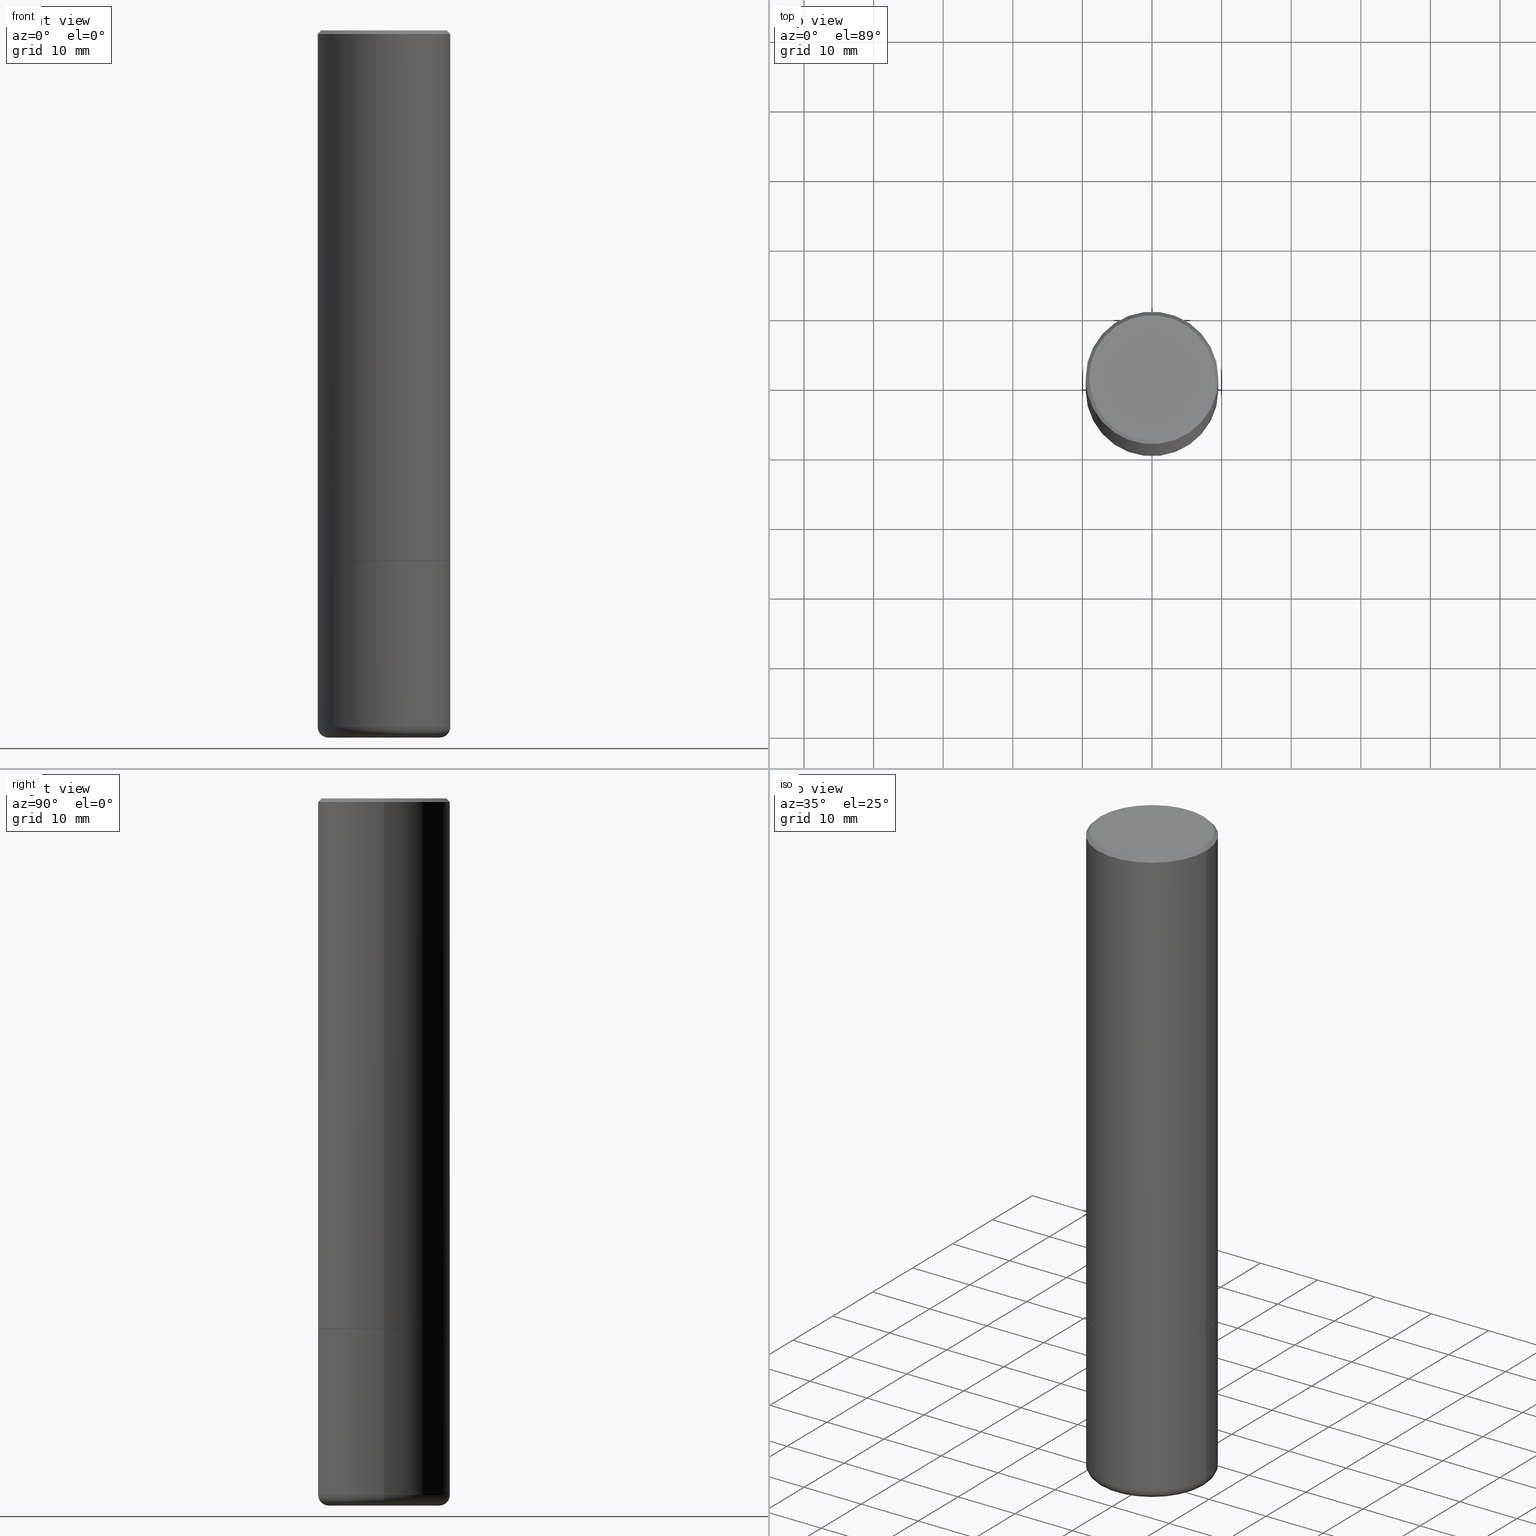
[diagram: canonical four-view strip — front | top / right | iso, engineering-drawing reading convention]
A machine part, canonical four-view strip (front | top / right | iso — engineering-drawing reading convention). The complete STEP part file that produces these views, byte-faithful:
ISO-10303-21;
HEADER;
FILE_DESCRIPTION (( 'STEP AP203' ),
    '1' );
FILE_NAME ('35628.STEP',
    '2022-11-02T20:30:41',
    ( '' ),
    ( '' ),
    'SwSTEP 2.0',
    'SolidWorks 2022',
    '' );
FILE_SCHEMA (( 'CONFIG_CONTROL_DESIGN' ));
ENDSEC;

DATA;
#1 = LINE ( 'NONE', #417, #376 ) ;
#2 = CC_DESIGN_DATE_AND_TIME_ASSIGNMENT ( #49, #245, ( #56 ) ) ;
#3 = CARTESIAN_POINT ( 'NONE',  ( 7.336406418555408669E-29, -1.047444401652943478E-14, -2.999999999999999556 ) ) ;
#4 =( NAMED_UNIT ( * ) PLANE_ANGLE_UNIT ( ) SI_UNIT ( $, .RADIAN. ) );
#5 = EDGE_CURVE ( 'NONE', #384, #74, #14, .T. ) ;
#6 = VECTOR ( 'NONE', #276, 39.37007874015748854 ) ;
#7 = APPLICATION_PROTOCOL_DEFINITION ( 'international standard', 'config_control_design', 1994, #373 ) ;
#8 = EDGE_LOOP ( 'NONE', ( #253, #380, #275, #103 ) ) ;
#9 = DIRECTION ( 'NONE',  ( -2.445468806185136597E-29, 3.491481338843145583E-15, 1.000000000000000000 ) ) ;
#10 = DIRECTION ( 'NONE',  ( 1.000000000000000000, 0.000000000000000000, 0.000000000000000000 ) ) ;
#11 = ADVANCED_FACE ( 'NONE', ( #434 ), #419, .T. ) ;
#12 = CARTESIAN_POINT ( 'NONE',  ( 7.336406418555408669E-29, -1.047444401652943478E-14, -2.999999999999999556 ) ) ;
#13 = ORIENTED_EDGE ( 'NONE', *, *, #196, .F. ) ;
#14 = CIRCLE ( 'NONE', #45, 0.06000000000000024758 ) ;
#15 = DIRECTION ( 'NONE',  ( -2.445468806185136597E-29, 3.491481338843145583E-15, 1.000000000000000000 ) ) ;
#16 = ORIENTED_EDGE ( 'NONE', *, *, #456, .T. ) ;
#17 = APPROVAL_ROLE ( '' ) ;
#18 = DIRECTION ( 'NONE',  ( 1.000000000000000000, -6.982962677686265922E-15, 4.876176775795935793E-29 ) ) ;
#19 = PRODUCT_DEFINITION_SHAPE ( 'NONE', 'NONE',  #35 ) ;
#20 = DATE_AND_TIME ( #174, #377 ) ;
#21 = DESIGN_CONTEXT ( 'detailed design', #308, 'design' ) ;
#22 = CC_DESIGN_DATE_AND_TIME_ASSIGNMENT ( #20, #270, ( #35 ) ) ;
#23 = AXIS2_PLACEMENT_3D ( 'NONE', #341, #464, #58 ) ;
#24 = DIRECTION ( 'NONE',  ( -2.445468806185136877E-29, 3.491481338843145188E-15, 1.000000000000000000 ) ) ;
#25 = AXIS2_PLACEMENT_3D ( 'NONE', #390, #155, #158 ) ;
#26 = DIRECTION ( 'NONE',  ( -2.445468806185136597E-29, 3.491481338843145583E-15, 1.000000000000000000 ) ) ;
#27 = APPROVAL_DATE_TIME ( #362, #98 ) ;
#28 = CYLINDRICAL_SURFACE ( 'NONE', #137, 0.3749999999999997780 ) ;
#29 = ADVANCED_FACE ( 'NONE', ( #153 ), #323, .F. ) ;
#30 = LINE ( 'NONE', #372, #340 ) ;
#31 = CIRCLE ( 'NONE', #484, 0.3749999999999991673 ) ;
#32 = CYLINDRICAL_SURFACE ( 'NONE', #436, 0.3749999999999992784 ) ;
#33 = ORIENTED_EDGE ( 'NONE', *, *, #313, .F. ) ;
#34 = DIRECTION ( 'NONE',  ( 1.000000000000000000, -6.982962677686266711E-15, 0.000000000000000000 ) ) ;
#35 = PRODUCT_DEFINITION ( 'UNKNOWN', '', #146, #21 ) ;
#36 = CARTESIAN_POINT ( 'NONE',  ( 9.781021626775434250E-29, -1.396470664370530441E-14, -3.999650947105539256 ) ) ;
#37 = ORIENTED_EDGE ( 'NONE', *, *, #294, .F. ) ;
#38 = CARTESIAN_POINT ( 'NONE',  ( 7.336406418555408669E-29, -1.047444401652943478E-14, -2.999999999999999556 ) ) ;
#39 = EDGE_LOOP ( 'NONE', ( #347, #302, #258, #284 ) ) ;
#40 = ORIENTED_EDGE ( 'NONE', *, *, #403, .T. ) ;
#41 = DIRECTION ( 'NONE',  ( -2.445468806185136597E-29, 3.491481338843145583E-15, 1.000000000000000000 ) ) ;
#42 = CYLINDRICAL_SURFACE ( 'NONE', #263, 0.3749999999999997780 ) ;
#43 = EDGE_LOOP ( 'NONE', ( #140, #120, #430, #220 ) ) ;
#44 = EDGE_LOOP ( 'NONE', ( #40, #116, #214, #13 ) ) ;
#45 = AXIS2_PLACEMENT_3D ( 'NONE', #164, #461, #156 ) ;
#46 = AXIS2_PLACEMENT_3D ( 'NONE', #248, #482, #18 ) ;
#47 = PERSON_AND_ORGANIZATION ( #205, #452 ) ;
#48 = DIRECTION ( 'NONE',  ( -1.000000000000000000, 6.982962677686266711E-15, 0.000000000000000000 ) ) ;
#49 = DATE_AND_TIME ( #57, #332 ) ;
#50 = DIRECTION ( 'NONE',  ( 1.000000000000000000, -6.982962677686265922E-15, 4.876176775795935793E-29 ) ) ;
#51 = EDGE_CURVE ( 'NONE', #282, #388, #366, .T. ) ;
#52 = CARTESIAN_POINT ( 'NONE',  ( -1.043851414335219820E-46, 1.490343170380447200E-32, 4.268512490100411279E-18 ) ) ;
#53 = CALENDAR_DATE ( 2022, 2, 11 ) ;
#54 = AXIS2_PLACEMENT_3D ( 'NONE', #52, #26, #86 ) ;
#55 = CARTESIAN_POINT ( 'NONE',  ( 4.890937612370324831E-31, -6.982962677686364332E-17, -0.02000000000000020858 ) ) ;
#56 = SECURITY_CLASSIFICATION ( '', '', #396 ) ;
#57 = CALENDAR_DATE ( 2022, 2, 11 ) ;
#58 = DIRECTION ( 'NONE',  ( -1.000000000000000000, 6.982962677686265922E-15, -4.876176775795935793E-29 ) ) ;
#59 = CARTESIAN_POINT ( 'NONE',  ( 0.000000000000000000, 0.000000000000000000, 0.000000000000000000 ) ) ;
#60 = DIRECTION ( 'NONE',  ( -2.445468806185136597E-29, 3.491481338843145583E-15, 1.000000000000000000 ) ) ;
#61 = AXIS2_PLACEMENT_3D ( 'NONE', #299, #424, #265 ) ;
#62 = AXIS2_PLACEMENT_3D ( 'NONE', #215, #217, #64 ) ;
#63 = ORIENTED_EDGE ( 'NONE', *, *, #241, .T. ) ;
#64 = DIRECTION ( 'NONE',  ( 1.000000000000000000, -6.982962677686269077E-15, 0.000000000000000000 ) ) ;
#65 = APPROVAL ( #399, 'UNSPECIFIED' ) ;
#66 = ORIENTED_EDGE ( 'NONE', *, *, #446, .F. ) ;
#67 = CARTESIAN_POINT ( 'NONE',  ( 0.3749999999999995004, -1.308956353932294179E-14, -2.999000000000000554 ) ) ;
#68 = EDGE_LOOP ( 'NONE', ( #422, #348, #448 ) ) ;
#69 = DIRECTION ( 'NONE',  ( 0.9999619230641714207, -6.890705306874777996E-15, -0.008726535498355246501 ) ) ;
#70 = AXIS2_PLACEMENT_3D ( 'NONE', #138, #357, #48 ) ;
#71 = ORIENTED_EDGE ( 'NONE', *, *, #192, .F. ) ;
#72 = ORIENTED_EDGE ( 'NONE', *, *, #408, .F. ) ;
#73 = ADVANCED_FACE ( 'NONE', ( #81 ), #391, .F. ) ;
#74 = VERTEX_POINT ( 'NONE', #209 ) ;
#75 = CARTESIAN_POINT ( 'NONE',  ( 0.3750000000000000555, -1.637505545586899647E-14, -3.940002284616149097 ) ) ;
#76 = CIRCLE ( 'NONE', #243, 0.3749999999999995004 ) ;
#77 = AXIS2_PLACEMENT_3D ( 'NONE', #194, #346, #10 ) ;
#78 = ORIENTED_EDGE ( 'NONE', *, *, #106, .F. ) ;
#79 = CC_DESIGN_PERSON_AND_ORGANIZATION_ASSIGNMENT ( #47, #321, ( #56 ) ) ;
#80 = CARTESIAN_POINT ( 'NONE',  ( 2.618611004132419436E-15, 0.3749999999999890088, -3.000000000000000888 ) ) ;
#81 = FACE_OUTER_BOUND ( 'NONE', #159, .T. ) ;
#82 = ORIENTED_EDGE ( 'NONE', *, *, #479, .T. ) ;
#83 = CIRCLE ( 'NONE', #62, 0.3144764078700981180 ) ;
#84 = DATE_AND_TIME ( #53, #444 ) ;
#85 = ADVANCED_FACE ( 'NONE', ( #364 ), #28, .T. ) ;
#86 = DIRECTION ( 'NONE',  ( 1.000000000000000000, -6.982962677686265133E-15, 4.876231632512000515E-29 ) ) ;
#87 = PERSON_AND_ORGANIZATION ( #205, #452 ) ;
#88 = CARTESIAN_POINT ( 'NONE',  ( -0.3749999999999992784, 2.664535259100370569E-15, -1.844600658845586235E-29 ) ) ;
#89 = APPLICATION_PROTOCOL_DEFINITION ( 'international standard', 'config_control_design', 1994, #308 ) ;
#90 = CARTESIAN_POINT ( 'NONE',  ( -0.3739999999999994995, -7.811715730438443207E-15, -2.999999999999999556 ) ) ;
#91 = COORDINATED_UNIVERSAL_TIME_OFFSET ( 5, 0, .BEHIND. ) ;
#92 = LINE ( 'NONE', #246, #460 ) ;
#93 = LOCAL_TIME ( 16, 30, 41.00000000000000000, #132 ) ;
#94 = PLANE ( 'NONE',  #46 ) ;
#95 = DIRECTION ( 'NONE',  ( 1.000000000000000000, -6.982962677686267499E-15, 4.876176775795935232E-29 ) ) ;
#96 = ORIENTED_EDGE ( 'NONE', *, *, #363, .T. ) ;
#97 = DIRECTION ( 'NONE',  ( -2.445468806185136597E-29, 3.491481338843145583E-15, 1.000000000000000000 ) ) ;
#98 = APPROVAL ( #314, 'UNSPECIFIED' ) ;
#99 = CONICAL_SURFACE ( 'NONE', #70, 0.2744789078700980989, 1.535889741755008808 ) ;
#100 = CIRCLE ( 'NONE', #25, 0.3144764078700981180 ) ;
#101 = ORIENTED_EDGE ( 'NONE', *, *, #393, .T. ) ;
#102 = DIRECTION ( 'NONE',  ( 1.000000000000000000, -6.982962677686266711E-15, 0.000000000000000000 ) ) ;
#103 = ORIENTED_EDGE ( 'NONE', *, *, #389, .F. ) ;
#104 = CARTESIAN_POINT ( 'NONE',  ( 7.336406418555408669E-29, -1.047444401652943478E-14, -2.999999999999999556 ) ) ;
#105 = ORIENTED_EDGE ( 'NONE', *, *, #294, .T. ) ;
#106 = EDGE_CURVE ( 'NONE', #262, #216, #312, .T. ) ;
#107 = DIRECTION ( 'NONE',  ( 1.000000000000000000, -6.982962677686269077E-15, 0.000000000000000000 ) ) ;
#108 = AXIS2_PLACEMENT_3D ( 'NONE', #190, #344, #305 ) ;
#109 = CIRCLE ( 'NONE', #229, 0.3749999999999991673 ) ;
#110 = VERTEX_POINT ( 'NONE', #272 ) ;
#111 = APPROVAL_PERSON_ORGANIZATION ( #392, #98, #274 ) ;
#112 =( NAMED_UNIT ( * ) SI_UNIT ( $, .STERADIAN. ) SOLID_ANGLE_UNIT ( ) );
#113 = ORIENTED_EDGE ( 'NONE', *, *, #336, .F. ) ;
#114 = EDGE_LOOP ( 'NONE', ( #301, #487, #297, #310 ) ) ;
#115 = DIRECTION ( 'NONE',  ( 2.445468806185136597E-29, -3.491481338843145583E-15, -1.000000000000000000 ) ) ;
#116 = ORIENTED_EDGE ( 'NONE', *, *, #313, .T. ) ;
#117 = VERTEX_POINT ( 'NONE', #273 ) ;
#118 = DIRECTION ( 'NONE',  ( 1.000000000000000000, -6.982962677686266711E-15, 0.000000000000000000 ) ) ;
#119 = ADVANCED_FACE ( 'NONE', ( #361 ), #251, .F. ) ;
#120 = ORIENTED_EDGE ( 'NONE', *, *, #211, .T. ) ;
#121 = CIRCLE ( 'NONE', #324, 0.3749999999999995004 ) ;
#122 =( GEOMETRIC_REPRESENTATION_CONTEXT ( 3 ) GLOBAL_UNCERTAINTY_ASSIGNED_CONTEXT ( ( #402 ) ) GLOBAL_UNIT_ASSIGNED_CONTEXT ( ( #467, #4, #112 ) ) REPRESENTATION_CONTEXT ( 'NONE', 'WORKASPACE' ) );
#123 = LINE ( 'NONE', #421, #410 ) ;
#124 = VERTEX_POINT ( 'NONE', #128 ) ;
#125 = DIRECTION ( 'NONE',  ( 1.000000000000000000, -6.982962677686269077E-15, 0.000000000000000000 ) ) ;
#126 = EDGE_CURVE ( 'NONE', #235, #457, #236, .T. ) ;
#127 = APPROVAL_DATE_TIME ( #84, #65 ) ;
#128 = CARTESIAN_POINT ( 'NONE',  ( -0.3749999999999991673, 2.548781377355480407E-15, -0.02000000000000020858 ) ) ;
#129 = AXIS2_PLACEMENT_3D ( 'NONE', #55, #400, #445 ) ;
#130 = APPROVAL_DATE_TIME ( #134, #218 ) ;
#131 = DIRECTION ( 'NONE',  ( -0.9993908270190957621, 6.856857904024552526E-15, -0.03489949670250219738 ) ) ;
#132 = COORDINATED_UNIVERSAL_TIME_OFFSET ( 5, 0, .BEHIND. ) ;
#133 = CARTESIAN_POINT ( 'NONE',  ( 0.3749999999999991673, -2.642516375941182112E-15, -0.02000000000000020858 ) ) ;
#134 = DATE_AND_TIME ( #200, #93 ) ;
#135 = CARTESIAN_POINT ( 'NONE',  ( 0.3144764078700981180, -1.616190237454231844E-14, -3.999999999999999556 ) ) ;
#136 = PRODUCT_RELATED_PRODUCT_CATEGORY ( 'detail', '', ( #423 ) ) ;
#137 = AXIS2_PLACEMENT_3D ( 'NONE', #238, #397, #50 ) ;
#138 = CARTESIAN_POINT ( 'NONE',  ( 9.781021626775434250E-29, -1.396470664370530441E-14, -3.999650947105539256 ) ) ;
#139 = CARTESIAN_POINT ( 'NONE',  ( 7.336406418555408669E-29, -1.047444401652943478E-14, -2.999999999999999556 ) ) ;
#140 = ORIENTED_EDGE ( 'NONE', *, *, #289, .F. ) ;
#141 = EDGE_CURVE ( 'NONE', #388, #282, #401, .T. ) ;
#142 = FACE_OUTER_BOUND ( 'NONE', #418, .T. ) ;
#143 = ADVANCED_BREP_SHAPE_REPRESENTATION ( '35628', ( #350, #186, #77 ), #122 ) ;
#144 = DIRECTION ( 'NONE',  ( 1.000000000000000000, -6.982962677686267499E-15, 4.876176775795935232E-29 ) ) ;
#145 = VECTOR ( 'NONE', #131, 39.37007874015747433 ) ;
#146 = PRODUCT_DEFINITION_FORMATION_WITH_SPECIFIED_SOURCE ( 'ANY', '', #423, .NOT_KNOWN. ) ;
#147 = ORIENTED_EDGE ( 'NONE', *, *, #462, .T. ) ;
#148 = DIRECTION ( 'NONE',  ( -2.445468806185136597E-29, 3.491481338843145583E-15, 1.000000000000000000 ) ) ;
#149 = EDGE_CURVE ( 'NONE', #459, #384, #175, .T. ) ;
#150 = DIRECTION ( 'NONE',  ( 1.000000000000000000, -6.982962677686269077E-15, 4.883557194083113462E-29 ) ) ;
#151 = ORIENTED_EDGE ( 'NONE', *, *, #178, .F. ) ;
#152 = DIRECTION ( 'NONE',  ( 1.000000000000000000, -6.982962677686266711E-15, 0.000000000000000000 ) ) ;
#153 = FACE_OUTER_BOUND ( 'NONE', #250, .T. ) ;
#154 = AXIS2_PLACEMENT_3D ( 'NONE', #38, #300, #163 ) ;
#155 = DIRECTION ( 'NONE',  ( -2.445468806185136597E-29, 3.491481338843145583E-15, 1.000000000000000000 ) ) ;
#156 = DIRECTION ( 'NONE',  ( -1.000000000000000000, 7.105427357600993970E-15, 0.000000000000000000 ) ) ;
#157 = ADVANCED_FACE ( 'NONE', ( #356 ), #306, .T. ) ;
#158 = DIRECTION ( 'NONE',  ( 1.000000000000000000, -6.982962677686269077E-15, 0.000000000000000000 ) ) ;
#159 = EDGE_LOOP ( 'NONE', ( #328, #232 ) ) ;
#160 = MECHANICAL_CONTEXT ( 'NONE', #373, 'mechanical' ) ;
#161 = DIRECTION ( 'NONE',  ( -2.445468806185136597E-29, 3.491481338843145583E-15, 1.000000000000000000 ) ) ;
#162 = AXIS2_PLACEMENT_3D ( 'NONE', #3, #292, #107 ) ;
#163 = DIRECTION ( 'NONE',  ( 1.000000000000000000, -6.982962677686269077E-15, 0.000000000000000000 ) ) ;
#164 = CARTESIAN_POINT ( 'NONE',  ( -0.3150000000000002798, -1.151823483409232651E-14, -3.940002284616149097 ) ) ;
#165 = EDGE_CURVE ( 'NONE', #216, #124, #109, .T. ) ;
#166 = PERSON_AND_ORGANIZATION ( #205, #452 ) ;
#167 = DIRECTION ( 'NONE',  ( -2.445468806185136877E-29, 3.491481338843145188E-15, 1.000000000000000000 ) ) ;
#168 = COORDINATED_UNIVERSAL_TIME_OFFSET ( 5, 0, .BEHIND. ) ;
#169 = DIRECTION ( 'NONE',  ( -2.445468806185136597E-29, 3.491481338843145583E-15, 1.000000000000000000 ) ) ;
#170 = CIRCLE ( 'NONE', #466, 0.2744789078700980989 ) ;
#171 = CARTESIAN_POINT ( 'NONE',  ( 0.3749999999999992784, -2.618611004132345283E-15, 1.828566290923472279E-29 ) ) ;
#172 = CC_DESIGN_PERSON_AND_ORGANIZATION_ASSIGNMENT ( #87, #206, ( #146 ) ) ;
#173 = CARTESIAN_POINT ( 'NONE',  ( -0.2744789078700980989, -1.204803067423632125E-14, -3.999650947105539256 ) ) ;
#174 = CALENDAR_DATE ( 2022, 2, 11 ) ;
#175 = LINE ( 'NONE', #201, #6 ) ;
#176 = CIRCLE ( 'NONE', #230, 0.3750000000000000555 ) ;
#177 = CARTESIAN_POINT ( 'NONE',  ( 0.000000000000000000, 0.000000000000000000, 0.000000000000000000 ) ) ;
#178 = EDGE_CURVE ( 'NONE', #110, #459, #442, .T. ) ;
#179 = EDGE_LOOP ( 'NONE', ( #151, #63, #317 ) ) ;
#180 = CARTESIAN_POINT ( 'NONE',  ( 9.635152683326964355E-29, -1.375644445173664487E-14, -3.940002284616149097 ) ) ;
#181 = ORIENTED_EDGE ( 'NONE', *, *, #106, .T. ) ;
#182 = DIRECTION ( 'NONE',  ( 0.9993908270190957621, -6.978169709227547010E-15, -0.03489949670250219738 ) ) ;
#183 = CARTESIAN_POINT ( 'NONE',  ( 7.333960949749226429E-29, -1.047095253519059492E-14, -2.999000000000000554 ) ) ;
#184 = CONICAL_SURFACE ( 'NONE', #260, 0.2744789078700980989, 1.535889741755008808 ) ;
#185 = ORIENTED_EDGE ( 'NONE', *, *, #307, .T. ) ;
#186 = MANIFOLD_SOLID_BREP ( 'Body-Move/Copy2[2]', #385 ) ;
#187 = CARTESIAN_POINT ( 'NONE',  ( 0.2744789078700980989, -1.584776864157862841E-14, -3.999650947105539256 ) ) ;
#188 = CARTESIAN_POINT ( 'NONE',  ( 4.890937612370324831E-31, -6.982962677686364332E-17, -0.02000000000000020858 ) ) ;
#189 = ORIENTED_EDGE ( 'NONE', *, *, #378, .T. ) ;
#190 = CARTESIAN_POINT ( 'NONE',  ( 9.781875224740545266E-29, -1.396592535537258075E-14, -3.999999999999999556 ) ) ;
#191 = CC_DESIGN_APPROVAL ( #98, ( #35 ) ) ;
#192 = EDGE_CURVE ( 'NONE', #261, #124, #439, .T. ) ;
#193 = ORIENTED_EDGE ( 'NONE', *, *, #149, .F. ) ;
#194 = CARTESIAN_POINT ( 'NONE',  ( 0.000000000000000000, 0.000000000000000000, 0.000000000000000000 ) ) ;
#195 = DIRECTION ( 'NONE',  ( -2.445468806185136597E-29, 3.491481338843145583E-15, 1.000000000000000000 ) ) ;
#196 = EDGE_CURVE ( 'NONE', #394, #262, #240, .T. ) ;
#197 = EDGE_LOOP ( 'NONE', ( #33, #105, #290, #492 ) ) ;
#198 = AXIS2_PLACEMENT_3D ( 'NONE', #398, #474, #405 ) ;
#199 = DIRECTION ( 'NONE',  ( 1.000000000000000000, -6.982962677686269077E-15, 4.883557194083113462E-29 ) ) ;
#200 = CALENDAR_DATE ( 2022, 2, 11 ) ;
#201 = CARTESIAN_POINT ( 'NONE',  ( -0.3144764078700981180, -1.176994833620283991E-14, -3.999999999999999556 ) ) ;
#202 = DIRECTION ( 'NONE',  ( 0.7071067811868130271, -2.468850131085038979E-15, 0.7071067811862817853 ) ) ;
#203 = AXIS2_PLACEMENT_3D ( 'NONE', #80, #386, #234 ) ;
#204 = ADVANCED_FACE ( 'NONE', ( #483 ), #99, .F. ) ;
#205 = PERSON ( 'UNSPECIFIED', 'UNSPECIFIED', 'UNSPECIFIED', ('UNSPECIFIED'), ('UNSPECIFIED'), ('UNSPECIFIED') ) ;
#206 = PERSON_AND_ORGANIZATION_ROLE ( 'design_supplier' ) ;
#207 = DIRECTION ( 'NONE',  ( 2.445468806185136597E-29, -3.491481338843145583E-15, -1.000000000000000000 ) ) ;
#208 = PERSON_AND_ORGANIZATION ( #205, #452 ) ;
#209 = CARTESIAN_POINT ( 'NONE',  ( -0.3750000000000000555, -9.450908975032663339E-15, -3.940002284616149097 ) ) ;
#210 = DIRECTION ( 'NONE',  ( -2.445468806185136597E-29, 3.491481338843145583E-15, 1.000000000000000000 ) ) ;
#211 = EDGE_CURVE ( 'NONE', #74, #457, #477, .T. ) ;
#212 = AXIS2_PLACEMENT_3D ( 'NONE', #177, #365, #144 ) ;
#213 = CARTESIAN_POINT ( 'NONE',  ( 4.890937612370324831E-31, -6.982962677686364332E-17, -0.02000000000000020858 ) ) ;
#214 = ORIENTED_EDGE ( 'NONE', *, *, #363, .F. ) ;
#215 = CARTESIAN_POINT ( 'NONE',  ( 9.781875224740545266E-29, -1.396592535537258075E-14, -3.999999999999999556 ) ) ;
#216 = VERTEX_POINT ( 'NONE', #133 ) ;
#217 = DIRECTION ( 'NONE',  ( -2.445468806185136597E-29, 3.491481338843145583E-15, 1.000000000000000000 ) ) ;
#218 = APPROVAL ( #311, 'UNSPECIFIED' ) ;
#219 = CARTESIAN_POINT ( 'NONE',  ( -0.3549999999999990941, 2.513866563967049153E-15, 4.268512490082953109E-18 ) ) ;
#220 = ORIENTED_EDGE ( 'NONE', *, *, #456, .F. ) ;
#221 = LENGTH_MEASURE_WITH_UNIT ( LENGTH_MEASURE( 0.02539999999999999897 ), #428 );
#222 = VERTEX_POINT ( 'NONE', #90 ) ;
#223 = FACE_OUTER_BOUND ( 'NONE', #8, .T. ) ;
#224 = ORIENTED_EDGE ( 'NONE', *, *, #393, .F. ) ;
#225 = ADVANCED_FACE ( 'NONE', ( #242 ), #352, .T. ) ;
#226 = FACE_OUTER_BOUND ( 'NONE', #293, .T. ) ;
#227 = ORIENTED_EDGE ( 'NONE', *, *, #141, .F. ) ;
#228 = CIRCLE ( 'NONE', #162, 0.3739999999999994995 ) ;
#229 = AXIS2_PLACEMENT_3D ( 'NONE', #315, #318, #476 ) ;
#230 = AXIS2_PLACEMENT_3D ( 'NONE', #465, #9, #463 ) ;
#231 = CARTESIAN_POINT ( 'NONE',  ( -0.2744789078700980989, -1.204803067423632125E-14, -3.999650947105539256 ) ) ;
#232 = ORIENTED_EDGE ( 'NONE', *, *, #141, .T. ) ;
#233 = ADVANCED_FACE ( 'NONE', ( #319 ), #94, .F. ) ;
#234 = DIRECTION ( 'NONE',  ( -1.000000000000000000, 6.982962677686265922E-15, -4.876176775795935793E-29 ) ) ;
#235 = VERTEX_POINT ( 'NONE', #135 ) ;
#236 = CIRCLE ( 'NONE', #198, 0.06000000000000024758 ) ;
#237 = PERSON_AND_ORGANIZATION_ROLE ( 'creator' ) ;
#238 = CARTESIAN_POINT ( 'NONE',  ( 0.000000000000000000, 0.000000000000000000, 0.000000000000000000 ) ) ;
#239 = APPROVAL_ROLE ( '' ) ;
#240 = LINE ( 'NONE', #322, #443 ) ;
#241 = EDGE_CURVE ( 'NONE', #110, #381, #92, .T. ) ;
#242 = FACE_OUTER_BOUND ( 'NONE', #409, .T. ) ;
#243 = AXIS2_PLACEMENT_3D ( 'NONE', #183, #60, #34 ) ;
#244 = AXIS2_PLACEMENT_3D ( 'NONE', #383, #349, #425 ) ;
#245 = DATE_TIME_ROLE ( 'classification_date' ) ;
#246 = CARTESIAN_POINT ( 'NONE',  ( 0.2744789078700980989, -1.584776864157862841E-14, -3.999650947105539256 ) ) ;
#247 = ADVANCED_FACE ( 'NONE', ( #252 ), #32, .T. ) ;
#248 = CARTESIAN_POINT ( 'NONE',  ( 7.336406418555408669E-29, -1.047444401652943478E-14, -2.999999999999999556 ) ) ;
#249 = CARTESIAN_POINT ( 'NONE',  ( 0.3749999999999995004, -1.309305502066178164E-14, -2.999999999999999556 ) ) ;
#250 = EDGE_LOOP ( 'NONE', ( #415, #101, #66, #193 ) ) ;
#251 = CONICAL_SURFACE ( 'NONE', #331, 0.3144764078700981180, 1.562069680534943661 ) ;
#252 = FACE_OUTER_BOUND ( 'NONE', #256, .T. ) ;
#253 = ORIENTED_EDGE ( 'NONE', *, *, #441, .T. ) ;
#254 = DIRECTION ( 'NONE',  ( -1.000000000000000000, 6.982962677686266711E-15, 0.000000000000000000 ) ) ;
#255 = CC_DESIGN_PERSON_AND_ORGANIZATION_ASSIGNMENT ( #481, #355, ( #35 ) ) ;
#256 = EDGE_LOOP ( 'NONE', ( #71, #147, #181, #375 ) ) ;
#257 = LINE ( 'NONE', #449, #387 ) ;
#258 = ORIENTED_EDGE ( 'NONE', *, *, #126, .T. ) ;
#259 = AXIS2_PLACEMENT_3D ( 'NONE', #12, #161, #125 ) ;
#260 = AXIS2_PLACEMENT_3D ( 'NONE', #374, #447, #254 ) ;
#261 = VERTEX_POINT ( 'NONE', #486 ) ;
#262 = VERTEX_POINT ( 'NONE', #67 ) ;
#263 = AXIS2_PLACEMENT_3D ( 'NONE', #298, #15, #431 ) ;
#264 = DIRECTION ( 'NONE',  ( 0.7071067811865447972, -7.319954787623245001E-15, -0.7071067811865501263 ) ) ;
#265 = DIRECTION ( 'NONE',  ( 1.000000000000000000, -6.982962677686265133E-15, 4.876231632512000515E-29 ) ) ;
#266 = ORIENTED_EDGE ( 'NONE', *, *, #51, .F. ) ;
#267 = PERSON_AND_ORGANIZATION ( #205, #452 ) ;
#268 = DIRECTION ( 'NONE',  ( -1.000000000000000000, 6.982962677686269077E-15, 0.000000000000000000 ) ) ;
#269 = AXIS2_PLACEMENT_3D ( 'NONE', #139, #97, #287 ) ;
#270 = DATE_TIME_ROLE ( 'creation_date' ) ;
#271 = ADVANCED_FACE ( 'NONE', ( #142 ), #291, .T. ) ;
#272 = CARTESIAN_POINT ( 'NONE',  ( 9.757203950114914083E-29, -1.393178180684462720E-14, -3.990065932433460638 ) ) ;
#273 = CARTESIAN_POINT ( 'NONE',  ( -0.3749999999999995004, -9.450908975032666494E-15, -2.999999999999999556 ) ) ;
#274 = APPROVAL_ROLE ( '' ) ;
#275 = ORIENTED_EDGE ( 'NONE', *, *, #378, .F. ) ;
#276 = DIRECTION ( 'NONE',  ( -0.9999619230641714207, 6.952228252019235511E-15, -0.008726535498355246501 ) ) ;
#277 = EDGE_CURVE ( 'NONE', #124, #216, #31, .T. ) ;
#278 = VECTOR ( 'NONE', #24, 39.37007874015748143 ) ;
#279 = CC_DESIGN_SECURITY_CLASSIFICATION ( #56, ( #146 ) ) ;
#280 = DIRECTION ( 'NONE',  ( -2.445468806185136597E-29, 3.491481338843145583E-15, 1.000000000000000000 ) ) ;
#281 = CARTESIAN_POINT ( 'NONE',  ( -0.3739999999999994995, -7.817014184786664031E-15, -2.999999999999999556 ) ) ;
#282 = VERTEX_POINT ( 'NONE', #219 ) ;
#283 = DIRECTION ( 'NONE',  ( -0.7071067811865447972, 2.468850131082228662E-15, -0.7071067811865501263 ) ) ;
#284 = ORIENTED_EDGE ( 'NONE', *, *, #211, .F. ) ;
#285 = AXIS2_PLACEMENT_3D ( 'NONE', #480, #280, #353 ) ;
#286 = AXIS2_PLACEMENT_3D ( 'NONE', #188, #115, #470 ) ;
#287 = DIRECTION ( 'NONE',  ( 1.000000000000000000, -6.982962677686269077E-15, 0.000000000000000000 ) ) ;
#288 = AXIS2_PLACEMENT_3D ( 'NONE', #382, #41, #152 ) ;
#289 = EDGE_CURVE ( 'NONE', #74, #117, #257, .T. ) ;
#290 = ORIENTED_EDGE ( 'NONE', *, *, #196, .T. ) ;
#291 = CYLINDRICAL_SURFACE ( 'NONE', #212, 0.3749999999999992784 ) ;
#292 = DIRECTION ( 'NONE',  ( -2.445468806185136597E-29, 3.491481338843145583E-15, 1.000000000000000000 ) ) ;
#293 = EDGE_LOOP ( 'NONE', ( #189, #16 ) ) ;
#294 = EDGE_CURVE ( 'NONE', #222, #394, #296, .T. ) ;
#295 = FACE_OUTER_BOUND ( 'NONE', #454, .T. ) ;
#296 = CIRCLE ( 'NONE', #269, 0.3739999999999994995 ) ;
#297 = ORIENTED_EDGE ( 'NONE', *, *, #441, .F. ) ;
#298 = CARTESIAN_POINT ( 'NONE',  ( 0.000000000000000000, 0.000000000000000000, 0.000000000000000000 ) ) ;
#299 = CARTESIAN_POINT ( 'NONE',  ( -1.043851414335219820E-46, 1.490343170380447200E-32, 4.268512490100411279E-18 ) ) ;
#300 = DIRECTION ( 'NONE',  ( -2.445468806185136597E-29, 3.491481338843145583E-15, 1.000000000000000000 ) ) ;
#301 = ORIENTED_EDGE ( 'NONE', *, *, #336, .T. ) ;
#302 = ORIENTED_EDGE ( 'NONE', *, *, #446, .T. ) ;
#303 = FACE_OUTER_BOUND ( 'NONE', #197, .T. ) ;
#304 = CLOSED_SHELL ( 'NONE', ( #29, #157, #416, #329, #204, #432, #85, #354, #119 ) ) ;
#305 = DIRECTION ( 'NONE',  ( -1.000000000000000000, 6.982962677686269077E-15, 0.000000000000000000 ) ) ;
#306 = TOROIDAL_SURFACE ( 'NONE', #316, 0.3150000000000002798, 0.06000000000000023370 ) ;
#307 = EDGE_CURVE ( 'NONE', #282, #124, #30, .T. ) ;
#308 = APPLICATION_CONTEXT ( 'configuration controlled 3d designs of mechanical parts and assemblies' ) ;
#309 = PLANE ( 'NONE',  #203 ) ;
#310 = ORIENTED_EDGE ( 'NONE', *, *, #126, .F. ) ;
#311 = APPROVAL_STATUS ( 'not_yet_approved' ) ;
#312 = LINE ( 'NONE', #171, #451 ) ;
#313 = EDGE_CURVE ( 'NONE', #222, #261, #453, .T. ) ;
#314 = APPROVAL_STATUS ( 'not_yet_approved' ) ;
#315 = CARTESIAN_POINT ( 'NONE',  ( 4.890937612370324831E-31, -6.982962677686364332E-17, -0.02000000000000020858 ) ) ;
#316 = AXIS2_PLACEMENT_3D ( 'NONE', #440, #169, #199 ) ;
#317 = ORIENTED_EDGE ( 'NONE', *, *, #320, .F. ) ;
#318 = DIRECTION ( 'NONE',  ( -2.445468806185136597E-29, 3.491481338843145583E-15, 1.000000000000000000 ) ) ;
#319 = FACE_OUTER_BOUND ( 'NONE', #326, .T. ) ;
#320 = EDGE_CURVE ( 'NONE', #459, #381, #170, .T. ) ;
#321 = PERSON_AND_ORGANIZATION_ROLE ( 'classification_officer' ) ;
#322 = CARTESIAN_POINT ( 'NONE',  ( 0.3739999999999994995, -1.308607205798409720E-14, -2.999999999999999556 ) ) ;
#323 = CONICAL_SURFACE ( 'NONE', #108, 0.3144764078700981180, 1.562069680534943661 ) ;
#324 = AXIS2_PLACEMENT_3D ( 'NONE', #104, #148, #327 ) ;
#325 = DIRECTION ( 'NONE',  ( -2.445468806185136597E-29, 3.491481338843145583E-15, 1.000000000000000000 ) ) ;
#326 = EDGE_LOOP ( 'NONE', ( #371, #37 ) ) ;
#327 = DIRECTION ( 'NONE',  ( 1.000000000000000000, -6.982962677686266711E-15, 0.000000000000000000 ) ) ;
#328 = ORIENTED_EDGE ( 'NONE', *, *, #51, .T. ) ;
#329 = ADVANCED_FACE ( 'NONE', ( #458 ), #184, .F. ) ;
#330 = CARTESIAN_POINT ( 'NONE',  ( 0.3549999999999990941, -2.538996582575035132E-15, 4.268512490117958041E-18 ) ) ;
#331 = AXIS2_PLACEMENT_3D ( 'NONE', #435, #207, #268 ) ;
#332 = LOCAL_TIME ( 16, 30, 41.00000000000000000, #360 ) ;
#333 = DIRECTION ( 'NONE',  ( -2.445468806185136877E-29, 3.491481338843145188E-15, 1.000000000000000000 ) ) ;
#334 = ORIENTED_EDGE ( 'NONE', *, *, #408, .T. ) ;
#335 = CARTESIAN_POINT ( 'NONE',  ( 0.3739999999999994995, -1.308607205798409720E-14, -2.999999999999999556 ) ) ;
#336 = EDGE_CURVE ( 'NONE', #235, #384, #83, .T. ) ;
#337 = ORIENTED_EDGE ( 'NONE', *, *, #307, .F. ) ;
#338 = ORIENTED_EDGE ( 'NONE', *, *, #165, .F. ) ;
#339 = CARTESIAN_POINT ( 'NONE',  ( 9.781021626775434250E-29, -1.396470664370530441E-14, -3.999650947105539256 ) ) ;
#340 = VECTOR ( 'NONE', #283, 39.37007874015748854 ) ;
#341 = CARTESIAN_POINT ( 'NONE',  ( 2.478951750578617898E-15, 0.3549999999999990941, -1.237341619044263272E-15 ) ) ;
#342 = CIRCLE ( 'NONE', #411, 0.2744789078700980989 ) ;
#343 = DIMENSIONAL_EXPONENTS ( 1.000000000000000000, 0.000000000000000000, 0.000000000000000000, 0.000000000000000000, 0.000000000000000000, 0.000000000000000000, 0.000000000000000000 ) ;
#344 = DIRECTION ( 'NONE',  ( 2.445468806185136597E-29, -3.491481338843145583E-15, -1.000000000000000000 ) ) ;
#345 = CC_DESIGN_PERSON_AND_ORGANIZATION_ASSIGNMENT ( #404, #237, ( #146 ) ) ;
#346 = DIRECTION ( 'NONE',  ( 0.000000000000000000, 0.000000000000000000, 1.000000000000000000 ) ) ;
#347 = ORIENTED_EDGE ( 'NONE', *, *, #5, .F. ) ;
#348 = ORIENTED_EDGE ( 'NONE', *, *, #178, .T. ) ;
#349 = DIRECTION ( 'NONE',  ( -2.445468806185136597E-29, 3.491481338843145583E-15, 1.000000000000000000 ) ) ;
#350 = MANIFOLD_SOLID_BREP ( 'Body-Move/Copy2[1]', #304 ) ;
#351 = VERTEX_POINT ( 'NONE', #249 ) ;
#352 = CONICAL_SURFACE ( 'NONE', #129, 0.3749999999999991673, 0.7853981633974445042 ) ;
#353 = DIRECTION ( 'NONE',  ( 1.000000000000000000, -6.982962677686266711E-15, 0.000000000000000000 ) ) ;
#354 = ADVANCED_FACE ( 'NONE', ( #406 ), #491, .T. ) ;
#355 = PERSON_AND_ORGANIZATION_ROLE ( 'creator' ) ;
#356 = FACE_OUTER_BOUND ( 'NONE', #114, .T. ) ;
#357 = DIRECTION ( 'NONE',  ( 2.445468806185136597E-29, -3.491481338843145583E-15, -1.000000000000000000 ) ) ;
#358 = VECTOR ( 'NONE', #333, 39.37007874015748143 ) ;
#359 = LOCAL_TIME ( 16, 30, 41.00000000000000000, #91 ) ;
#360 = COORDINATED_UNIVERSAL_TIME_OFFSET ( 5, 0, .BEHIND. ) ;
#361 = FACE_OUTER_BOUND ( 'NONE', #489, .T. ) ;
#362 = DATE_AND_TIME ( #473, #359 ) ;
#363 = EDGE_CURVE ( 'NONE', #262, #261, #76, .T. ) ;
#364 = FACE_OUTER_BOUND ( 'NONE', #43, .T. ) ;
#365 = DIRECTION ( 'NONE',  ( -2.445468806185136597E-29, 3.491481338843145583E-15, 1.000000000000000000 ) ) ;
#366 = CIRCLE ( 'NONE', #61, 0.3549999999999990941 ) ;
#367 = CONICAL_SURFACE ( 'NONE', #154, 0.3739999999999994995, 0.7853981633978239785 ) ;
#368 = CC_DESIGN_APPROVAL ( #218, ( #56 ) ) ;
#369 = DIRECTION ( 'NONE',  ( 1.000000000000000000, -6.982962677686266711E-15, 0.000000000000000000 ) ) ;
#370 = CC_DESIGN_PERSON_AND_ORGANIZATION_ASSIGNMENT ( #166, #438, ( #423 ) ) ;
#371 = ORIENTED_EDGE ( 'NONE', *, *, #403, .F. ) ;
#372 = CARTESIAN_POINT ( 'NONE',  ( -0.3749999999999991673, 2.548781377355480407E-15, -0.02000000000000020858 ) ) ;
#373 = APPLICATION_CONTEXT ( 'configuration controlled 3d designs of mechanical parts and assemblies' ) ;
#374 = CARTESIAN_POINT ( 'NONE',  ( 9.781021626775434250E-29, -1.396470664370530441E-14, -3.999650947105539256 ) ) ;
#375 = ORIENTED_EDGE ( 'NONE', *, *, #277, .F. ) ;
#376 = VECTOR ( 'NONE', #69, 39.37007874015748854 ) ;
#377 = LOCAL_TIME ( 16, 30, 41.00000000000000000, #475 ) ;
#378 = EDGE_CURVE ( 'NONE', #351, #117, #121, .T. ) ;
#379 = DIRECTION ( 'NONE',  ( -0.7071067811868130271, 7.493145998871311837E-15, 0.7071067811862817853 ) ) ;
#380 = ORIENTED_EDGE ( 'NONE', *, *, #289, .T. ) ;
#381 = VERTEX_POINT ( 'NONE', #187 ) ;
#382 = CARTESIAN_POINT ( 'NONE',  ( 7.333960949749226429E-29, -1.047095253519059492E-14, -2.999000000000000554 ) ) ;
#383 = CARTESIAN_POINT ( 'NONE',  ( 7.336406418555408669E-29, -1.047444401652943478E-14, -2.999999999999999556 ) ) ;
#384 = VERTEX_POINT ( 'NONE', #488 ) ;
#385 = CLOSED_SHELL ( 'NONE', ( #11, #271, #225, #485, #247, #426, #233, #73 ) ) ;
#386 = DIRECTION ( 'NONE',  ( 2.438088387897960049E-29, -3.491481338843145188E-15, -1.000000000000000000 ) ) ;
#387 = VECTOR ( 'NONE', #455, 39.37007874015748143 ) ;
#388 = VERTEX_POINT ( 'NONE', #330 ) ;
#389 = EDGE_CURVE ( 'NONE', #457, #351, #490, .T. ) ;
#390 = CARTESIAN_POINT ( 'NONE',  ( 9.781875224740545266E-29, -1.396592535537258075E-14, -3.999999999999999556 ) ) ;
#391 = PLANE ( 'NONE',  #23 ) ;
#392 = PERSON_AND_ORGANIZATION ( #205, #452 ) ;
#393 = EDGE_CURVE ( 'NONE', #381, #235, #1, .T. ) ;
#394 = VERTEX_POINT ( 'NONE', #335 ) ;
#395 = APPROVAL_PERSON_ORGANIZATION ( #208, #218, #239 ) ;
#396 = SECURITY_CLASSIFICATION_LEVEL ( 'unclassified' ) ;
#397 = DIRECTION ( 'NONE',  ( -2.445468806185136597E-29, 3.491481338843145583E-15, 1.000000000000000000 ) ) ;
#398 = CARTESIAN_POINT ( 'NONE',  ( 0.3150000000000002798, -1.595607769520781983E-14, -3.940002284616149097 ) ) ;
#399 = APPROVAL_STATUS ( 'not_yet_approved' ) ;
#400 = DIRECTION ( 'NONE',  ( 2.445468806185136597E-29, -3.491481338843145583E-15, -1.000000000000000000 ) ) ;
#401 = CIRCLE ( 'NONE', #54, 0.3549999999999990941 ) ;
#402 = UNCERTAINTY_MEASURE_WITH_UNIT (LENGTH_MEASURE( 1.000000000000000082E-05 ), #467, 'distance_accuracy_value', 'NONE');
#403 = EDGE_CURVE ( 'NONE', #394, #222, #228, .T. ) ;
#404 = PERSON_AND_ORGANIZATION ( #205, #452 ) ;
#405 = DIRECTION ( 'NONE',  ( 1.000000000000000000, -6.982962677686271444E-15, 0.000000000000000000 ) ) ;
#406 = FACE_OUTER_BOUND ( 'NONE', #39, .T. ) ;
#407 = DIRECTION ( 'NONE',  ( -2.445468806185136597E-29, 3.491481338843145583E-15, 1.000000000000000000 ) ) ;
#408 = EDGE_CURVE ( 'NONE', #388, #216, #123, .T. ) ;
#409 = EDGE_LOOP ( 'NONE', ( #227, #334, #471, #337 ) ) ;
#410 = VECTOR ( 'NONE', #264, 39.37007874015748854 ) ;
#411 = AXIS2_PLACEMENT_3D ( 'NONE', #339, #195, #118 ) ;
#412 = DIRECTION ( 'NONE',  ( -2.445468806185136597E-29, 3.491481338843145583E-15, 1.000000000000000000 ) ) ;
#413 = ORIENTED_EDGE ( 'NONE', *, *, #192, .T. ) ;
#414 = CARTESIAN_POINT ( 'NONE',  ( 0.3749999999999997780, -2.618611004132348044E-15, 1.828566290923474801E-29 ) ) ;
#415 = ORIENTED_EDGE ( 'NONE', *, *, #320, .T. ) ;
#416 = ADVANCED_FACE ( 'NONE', ( #223 ), #42, .T. ) ;
#417 = CARTESIAN_POINT ( 'NONE',  ( 0.3144764078700981180, -1.612339012191177310E-14, -3.999999999999999556 ) ) ;
#418 = EDGE_LOOP ( 'NONE', ( #96, #413, #338, #78 ) ) ;
#419 = CONICAL_SURFACE ( 'NONE', #259, 0.3739999999999994995, 0.7853981633978239785 ) ;
#420 = CC_DESIGN_APPROVAL ( #65, ( #146 ) ) ;
#421 = CARTESIAN_POINT ( 'NONE',  ( 0.3749999999999991673, -2.642516375941182112E-15, -0.02000000000000020858 ) ) ;
#422 = ORIENTED_EDGE ( 'NONE', *, *, #241, .F. ) ;
#423 = PRODUCT ( '35628', '35628', '', ( #160 ) ) ;
#424 = DIRECTION ( 'NONE',  ( -2.445468806185136597E-29, 3.491481338843145583E-15, 1.000000000000000000 ) ) ;
#425 = DIRECTION ( 'NONE',  ( 1.000000000000000000, -6.982962677686266711E-15, 0.000000000000000000 ) ) ;
#426 = ADVANCED_FACE ( 'NONE', ( #303 ), #367, .T. ) ;
#427 = VECTOR ( 'NONE', #379, 39.37007874015748854 ) ;
#428 =( LENGTH_UNIT ( ) NAMED_UNIT ( * ) SI_UNIT ( $, .METRE. ) );
#429 = CIRCLE ( 'NONE', #288, 0.3749999999999995004 ) ;
#430 = ORIENTED_EDGE ( 'NONE', *, *, #389, .T. ) ;
#431 = DIRECTION ( 'NONE',  ( 1.000000000000000000, -6.982962677686265922E-15, 4.876176775795935793E-29 ) ) ;
#432 = ADVANCED_FACE ( 'NONE', ( #226 ), #309, .F. ) ;
#433 = SHAPE_DEFINITION_REPRESENTATION ( #19, #143 ) ;
#434 = FACE_OUTER_BOUND ( 'NONE', #44, .T. ) ;
#435 = CARTESIAN_POINT ( 'NONE',  ( 9.781875224740545266E-29, -1.396592535537258075E-14, -3.999999999999999556 ) ) ;
#436 = AXIS2_PLACEMENT_3D ( 'NONE', #59, #210, #95 ) ;
#437 = APPROVAL_PERSON_ORGANIZATION ( #267, #65, #17 ) ;
#438 = PERSON_AND_ORGANIZATION_ROLE ( 'design_owner' ) ;
#439 = LINE ( 'NONE', #88, #278 ) ;
#440 = CARTESIAN_POINT ( 'NONE',  ( 9.635152683326964355E-29, -1.375644445173664487E-14, -3.940002284616149097 ) ) ;
#441 = EDGE_CURVE ( 'NONE', #457, #74, #176, .T. ) ;
#442 = LINE ( 'NONE', #173, #145 ) ;
#443 = VECTOR ( 'NONE', #202, 39.37007874015748854 ) ;
#444 = LOCAL_TIME ( 16, 30, 41.00000000000000000, #168 ) ;
#445 = DIRECTION ( 'NONE',  ( -1.000000000000000000, 6.982962677686266711E-15, 0.000000000000000000 ) ) ;
#446 = EDGE_CURVE ( 'NONE', #384, #235, #100, .T. ) ;
#447 = DIRECTION ( 'NONE',  ( 2.445468806185136597E-29, -3.491481338843145583E-15, -1.000000000000000000 ) ) ;
#448 = ORIENTED_EDGE ( 'NONE', *, *, #479, .F. ) ;
#449 = CARTESIAN_POINT ( 'NONE',  ( -0.3749999999999997780, 2.664535259100374119E-15, -1.844600658845588477E-29 ) ) ;
#450 = AXIS2_PLACEMENT_3D ( 'NONE', #180, #407, #150 ) ;
#451 = VECTOR ( 'NONE', #167, 39.37007874015748143 ) ;
#452 = ORGANIZATION ( 'UNSPECIFIED', 'UNSPECIFIED', '' ) ;
#453 = LINE ( 'NONE', #281, #427 ) ;
#454 = EDGE_LOOP ( 'NONE', ( #72, #266, #185, #469 ) ) ;
#455 = DIRECTION ( 'NONE',  ( -2.445468806185136877E-29, 3.491481338843145188E-15, 1.000000000000000000 ) ) ;
#456 = EDGE_CURVE ( 'NONE', #117, #351, #468, .T. ) ;
#457 = VERTEX_POINT ( 'NONE', #75 ) ;
#458 = FACE_OUTER_BOUND ( 'NONE', #179, .T. ) ;
#459 = VERTEX_POINT ( 'NONE', #231 ) ;
#460 = VECTOR ( 'NONE', #182, 39.37007874015747433 ) ;
#461 = DIRECTION ( 'NONE',  ( 7.105427357601001859E-15, 1.000000000000000000, -3.491481338843145583E-15 ) ) ;
#462 = EDGE_CURVE ( 'NONE', #261, #262, #429, .T. ) ;
#463 = DIRECTION ( 'NONE',  ( 1.000000000000000000, -6.982962677686266711E-15, 0.000000000000000000 ) ) ;
#464 = DIRECTION ( 'NONE',  ( 2.438088387897960049E-29, -3.491481338843145188E-15, -1.000000000000000000 ) ) ;
#465 = CARTESIAN_POINT ( 'NONE',  ( 9.635152683326964355E-29, -1.375644445173664487E-14, -3.940002284616149097 ) ) ;
#466 = AXIS2_PLACEMENT_3D ( 'NONE', #36, #412, #369 ) ;
#467 =( CONVERSION_BASED_UNIT ( 'INCH', #221 ) LENGTH_UNIT ( ) NAMED_UNIT ( #343 ) );
#468 = CIRCLE ( 'NONE', #244, 0.3749999999999995004 ) ;
#469 = ORIENTED_EDGE ( 'NONE', *, *, #277, .T. ) ;
#470 = DIRECTION ( 'NONE',  ( -1.000000000000000000, 6.982962677686266711E-15, 0.000000000000000000 ) ) ;
#471 = ORIENTED_EDGE ( 'NONE', *, *, #165, .T. ) ;
#472 = ORIENTED_EDGE ( 'NONE', *, *, #149, .T. ) ;
#473 = CALENDAR_DATE ( 2022, 2, 11 ) ;
#474 = DIRECTION ( 'NONE',  ( -6.982962677686266711E-15, -1.000000000000000000, 3.491481338843145583E-15 ) ) ;
#475 = COORDINATED_UNIVERSAL_TIME_OFFSET ( 5, 0, .BEHIND. ) ;
#476 = DIRECTION ( 'NONE',  ( 1.000000000000000000, -6.982962677686266711E-15, 0.000000000000000000 ) ) ;
#477 = CIRCLE ( 'NONE', #285, 0.3750000000000000555 ) ;
#478 = CONICAL_SURFACE ( 'NONE', #286, 0.3749999999999991673, 0.7853981633974445042 ) ;
#479 = EDGE_CURVE ( 'NONE', #381, #459, #342, .T. ) ;
#480 = CARTESIAN_POINT ( 'NONE',  ( 9.635152683326964355E-29, -1.375644445173664487E-14, -3.940002284616149097 ) ) ;
#481 = PERSON_AND_ORGANIZATION ( #205, #452 ) ;
#482 = DIRECTION ( 'NONE',  ( -2.438088387897960049E-29, 3.491481338843145188E-15, 1.000000000000000000 ) ) ;
#483 = FACE_OUTER_BOUND ( 'NONE', #68, .T. ) ;
#484 = AXIS2_PLACEMENT_3D ( 'NONE', #213, #325, #102 ) ;
#485 = ADVANCED_FACE ( 'NONE', ( #295 ), #478, .T. ) ;
#486 = CARTESIAN_POINT ( 'NONE',  ( -0.3749999999999993894, -2.605855821883354597E-15, -2.999000000000000554 ) ) ;
#487 = ORIENTED_EDGE ( 'NONE', *, *, #5, .T. ) ;
#488 = CARTESIAN_POINT ( 'NONE',  ( -0.3144764078700981180, -1.141167263810427951E-14, -3.999999999999999556 ) ) ;
#489 = EDGE_LOOP ( 'NONE', ( #224, #82, #472, #113 ) ) ;
#490 = LINE ( 'NONE', #414, #358 ) ;
#491 = TOROIDAL_SURFACE ( 'NONE', #450, 0.3150000000000002798, 0.06000000000000023370 ) ;
#492 = ORIENTED_EDGE ( 'NONE', *, *, #462, .F. ) ;
ENDSEC;
END-ISO-10303-21;
